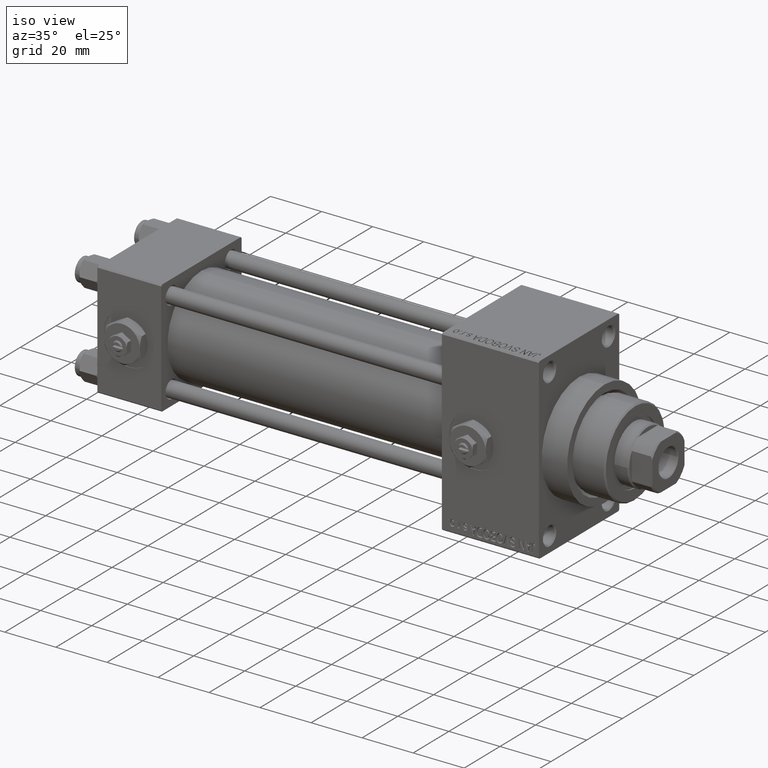
[diagram: clean part render]
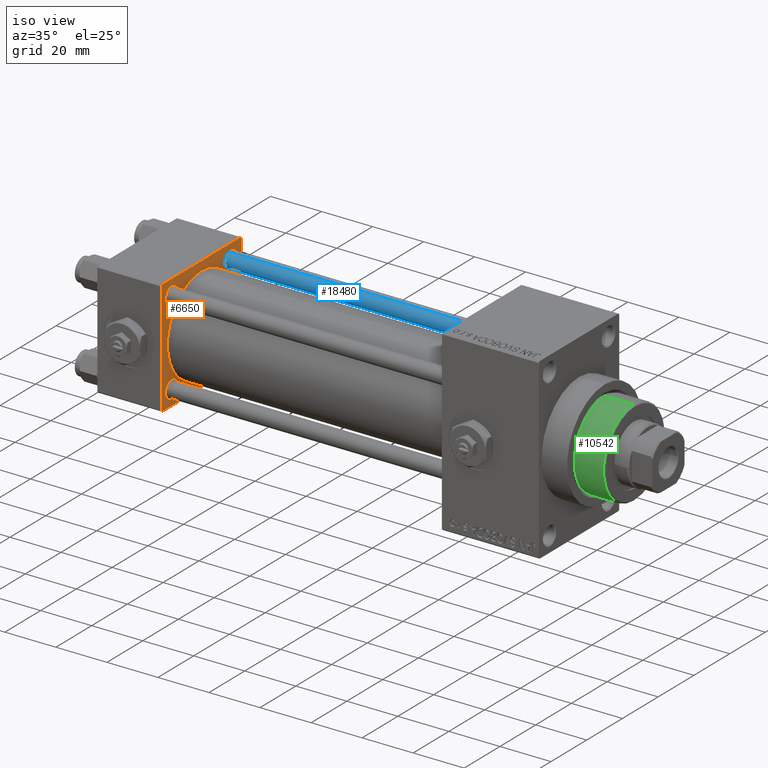
[diagram: same view with three faces highlighted in distinct colors, each labeled with its STEP entity id]
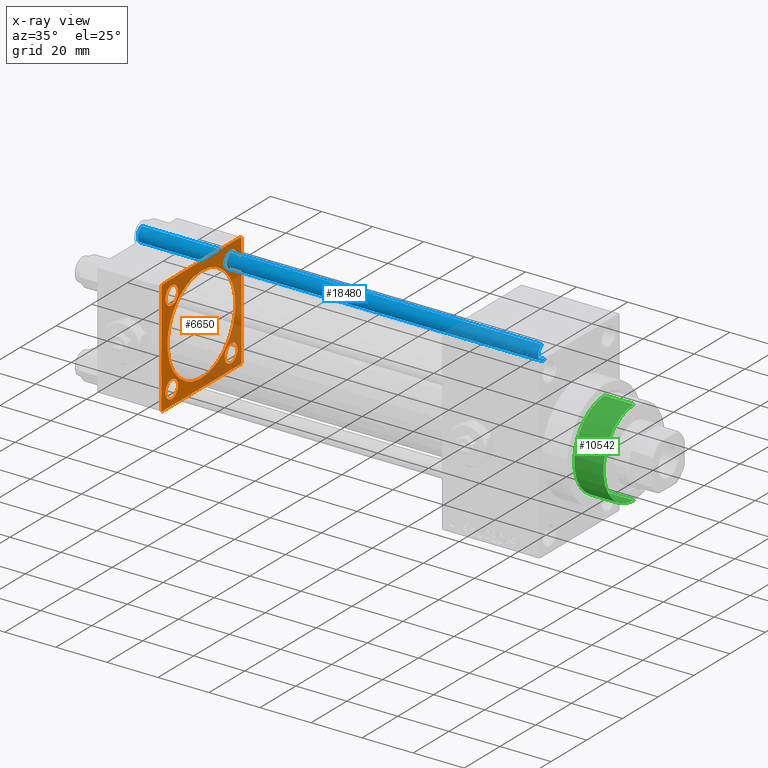
[diagram: x-ray of the same camera — body ghosted, the three highlighted faces saturated]
A machine part, iso view with three faces highlighted in distinct colors.
The next image is the same camera in x-ray (body ghosted, the three faces saturated) — at least one of them is partly hidden behind the body in this view.
Their STEP definitions:

[orange] entity #6650 — the highlighted planar face has unit normal (-1, 0, 0).
#215 = VERTEX_POINT ( 'NONE', #45358 ) ;
#1171 = CARTESIAN_POINT ( 'NONE',  ( 25.00000000000000000, -16.59999999999999076, 16.60000000000000853 ) ) ;
#1376 = VERTEX_POINT ( 'NONE', #35162 ) ;
#1720 = ORIENTED_EDGE ( 'NONE', *, *, #36762, .T. ) ;
#2198 = AXIS2_PLACEMENT_3D ( 'NONE', #47590, #28708, #43879 ) ;
#2247 = CARTESIAN_POINT ( 'NONE',  ( 25.00000000000000000, -22.50000000000000000, 22.00000000000000000 ) ) ;
#2430 = DIRECTION ( 'NONE',  ( 0.000000000000000000, -1.000000000000000000, -2.312964634635742957E-16 ) ) ;
#2605 = ORIENTED_EDGE ( 'NONE', *, *, #31186, .T. ) ;
#3300 = CIRCLE ( 'NONE', #27876, 3.500000000000003109 ) ;
#3740 = DIRECTION ( 'NONE',  ( -0.000000000000000000, 0.7071067811865426878, 0.7071067811865524577 ) ) ;
#4145 = CARTESIAN_POINT ( 'NONE',  ( 25.00000000000000000, -16.59999999999999076, 13.10000000000002807 ) ) ;
#4555 = AXIS2_PLACEMENT_3D ( 'NONE', #13896, #29012, #40443 ) ;
#4718 = CARTESIAN_POINT ( 'NONE',  ( 25.00000000000000000, 22.50000000000000000, -21.99999999999998224 ) ) ;
#5115 = CIRCLE ( 'NONE', #32869, 19.00000000000000000 ) ;
#5293 = CARTESIAN_POINT ( 'NONE',  ( 25.00000000000000000, -21.99999999999998579, -22.50000000000000711 ) ) ;
#6166 = CIRCLE ( 'NONE', #4555, 3.500000000000003109 ) ;
#6569 = VERTEX_POINT ( 'NONE', #16990 ) ;
#6650 = ADVANCED_FACE ( 'NONE', ( #27285, #42452, #8914, #24794, #17117, #9159 ), #35224, .F. ) ;
#7082 = AXIS2_PLACEMENT_3D ( 'NONE', #44808, #28922, #10550 ) ;
#8390 = DIRECTION ( 'NONE',  ( 0.000000000000000000, -1.000000000000000000, -7.709882115452476934E-17 ) ) ;
#8693 = CARTESIAN_POINT ( 'NONE',  ( 25.00000000000000000, -16.59999999999999076, 20.09999999999998721 ) ) ;
#8914 = FACE_BOUND ( 'NONE', #44801, .T. ) ;
#9159 = FACE_OUTER_BOUND ( 'NONE', #35822, .T. ) ;
#9266 = DIRECTION ( 'NONE',  ( 0.000000000000000000, 0.000000000000000000, 1.000000000000000000 ) ) ;
#9358 = VECTOR ( 'NONE', #46329, 1000.000000000000000 ) ;
#9559 = DIRECTION ( 'NONE',  ( -1.000000000000000000, 0.000000000000000000, -0.000000000000000000 ) ) ;
#9834 = ORIENTED_EDGE ( 'NONE', *, *, #30893, .T. ) ;
#10389 = LINE ( 'NONE', #40432, #43107 ) ;
#10550 = DIRECTION ( 'NONE',  ( 0.000000000000000000, 0.000000000000000000, 1.000000000000000000 ) ) ;
#11052 = EDGE_LOOP ( 'NONE', ( #40641, #11590 ) ) ;
#11590 = ORIENTED_EDGE ( 'NONE', *, *, #45780, .T. ) ;
#11843 = VERTEX_POINT ( 'NONE', #30373 ) ;
#11882 = EDGE_LOOP ( 'NONE', ( #46000, #15228 ) ) ;
#12066 = LINE ( 'NONE', #19511, #9358 ) ;
#12196 = EDGE_CURVE ( 'NONE', #21441, #1376, #6166, .T. ) ;
#12265 = CARTESIAN_POINT ( 'NONE',  ( 25.00000000000000000, -16.59999999999999076, -13.10000000000003162 ) ) ;
#12330 = VERTEX_POINT ( 'NONE', #14373 ) ;
#12369 = EDGE_CURVE ( 'NONE', #18249, #43035, #35185, .T. ) ;
#12526 = EDGE_CURVE ( 'NONE', #18409, #34833, #45020, .T. ) ;
#12666 = VERTEX_POINT ( 'NONE', #31148 ) ;
#12808 = DIRECTION ( 'NONE',  ( 0.000000000000000000, 0.000000000000000000, 1.000000000000000000 ) ) ;
#12879 = VERTEX_POINT ( 'NONE', #44791 ) ;
#13153 = DIRECTION ( 'NONE',  ( 0.000000000000000000, 0.000000000000000000, 1.000000000000000000 ) ) ;
#13448 = EDGE_CURVE ( 'NONE', #215, #23646, #12066, .T. ) ;
#13896 = CARTESIAN_POINT ( 'NONE',  ( 25.00000000000000000, 16.59999999999999787, 16.60000000000000497 ) ) ;
#14348 = CARTESIAN_POINT ( 'NONE',  ( 25.00000000000000000, -21.99999999999997868, 22.50000000000000000 ) ) ;
#14373 = CARTESIAN_POINT ( 'NONE',  ( 25.00000000000000000, -22.50000000000000000, -21.99999999999997158 ) ) ;
#14698 = DIRECTION ( 'NONE',  ( 1.000000000000000000, -0.000000000000000000, 0.000000000000000000 ) ) ;
#14909 = VECTOR ( 'NONE', #8390, 1000.000000000000000 ) ;
#15228 = ORIENTED_EDGE ( 'NONE', *, *, #32714, .F. ) ;
#15841 = DIRECTION ( 'NONE',  ( -1.000000000000000000, 0.000000000000000000, -0.000000000000000000 ) ) ;
#15861 = ORIENTED_EDGE ( 'NONE', *, *, #12196, .T. ) ;
#16372 = DIRECTION ( 'NONE',  ( -1.000000000000000000, 0.000000000000000000, -0.000000000000000000 ) ) ;
#16794 = AXIS2_PLACEMENT_3D ( 'NONE', #39204, #16372, #24062 ) ;
#16878 = CARTESIAN_POINT ( 'NONE',  ( 24.99999999999999289, -2.602085213965210642E-15, 0.000000000000000000 ) ) ;
#16990 = CARTESIAN_POINT ( 'NONE',  ( 25.00000000000000000, -16.59999999999999076, -20.09999999999998366 ) ) ;
#17087 = VERTEX_POINT ( 'NONE', #30731 ) ;
#17117 = FACE_BOUND ( 'NONE', #11882, .T. ) ;
#17135 = CARTESIAN_POINT ( 'NONE',  ( 25.00000000000000000, 21.99999999999999289, -22.49999999999999645 ) ) ;
#17661 = EDGE_CURVE ( 'NONE', #35698, #12330, #38509, .T. ) ;
#18249 = VERTEX_POINT ( 'NONE', #40511 ) ;
#18409 = VERTEX_POINT ( 'NONE', #8693 ) ;
#19153 = CARTESIAN_POINT ( 'NONE',  ( 25.00000000000000000, -22.50000000000000000, 22.50000000000000000 ) ) ;
#19161 = LINE ( 'NONE', #4718, #37457 ) ;
#19222 = EDGE_CURVE ( 'NONE', #215, #18249, #36546, .T. ) ;
#19511 = CARTESIAN_POINT ( 'NONE',  ( 25.00000000000000000, 22.50000000000000000, 22.50000000000000355 ) ) ;
#20310 = ORIENTED_EDGE ( 'NONE', *, *, #29117, .F. ) ;
#20448 = EDGE_LOOP ( 'NONE', ( #15861, #1720 ) ) ;
#20632 = DIRECTION ( 'NONE',  ( -1.000000000000000000, 0.000000000000000000, -0.000000000000000000 ) ) ;
#20990 = AXIS2_PLACEMENT_3D ( 'NONE', #28127, #43287, #9266 ) ;
#21417 = ORIENTED_EDGE ( 'NONE', *, *, #13448, .F. ) ;
#21441 = VERTEX_POINT ( 'NONE', #22574 ) ;
#21489 = ORIENTED_EDGE ( 'NONE', *, *, #25177, .T. ) ;
#22498 = CIRCLE ( 'NONE', #43922, 19.00000000000000000 ) ;
#22574 = CARTESIAN_POINT ( 'NONE',  ( 25.00000000000000000, 16.59999999999999787, 13.10000000000000142 ) ) ;
#22800 = CARTESIAN_POINT ( 'NONE',  ( 25.00000000000000000, 22.50000000000000000, 22.50000000000000355 ) ) ;
#23646 = VERTEX_POINT ( 'NONE', #30510 ) ;
#24062 = DIRECTION ( 'NONE',  ( -0.000000000000000000, 0.000000000000000000, 1.000000000000000000 ) ) ;
#24222 = CARTESIAN_POINT ( 'NONE',  ( 25.00000000000000000, 16.59999999999999787, 16.60000000000000497 ) ) ;
#24667 = AXIS2_PLACEMENT_3D ( 'NONE', #1171, #15841, #27245 ) ;
#24794 = FACE_BOUND ( 'NONE', #20448, .T. ) ;
#25177 = EDGE_CURVE ( 'NONE', #12330, #12879, #27891, .T. ) ;
#25301 = CIRCLE ( 'NONE', #7082, 3.500000000000003109 ) ;
#25842 = DIRECTION ( 'NONE',  ( 0.000000000000000000, 0.000000000000000000, 1.000000000000000000 ) ) ;
#26425 = ORIENTED_EDGE ( 'NONE', *, *, #12369, .T. ) ;
#26523 = VERTEX_POINT ( 'NONE', #12265 ) ;
#26577 = CARTESIAN_POINT ( 'NONE',  ( 24.99999999999999289, -2.602085213965210642E-15, 0.000000000000000000 ) ) ;
#26927 = EDGE_CURVE ( 'NONE', #35332, #23646, #19161, .T. ) ;
#27245 = DIRECTION ( 'NONE',  ( 0.000000000000000000, 0.000000000000000000, 1.000000000000000000 ) ) ;
#27285 = FACE_BOUND ( 'NONE', #33513, .T. ) ;
#27701 = AXIS2_PLACEMENT_3D ( 'NONE', #24222, #9559, #12808 ) ;
#27876 = AXIS2_PLACEMENT_3D ( 'NONE', #45383, #49097, #45128 ) ;
#27891 = LINE ( 'NONE', #5293, #29506 ) ;
#28086 = CIRCLE ( 'NONE', #20990, 3.499999999999975131 ) ;
#28127 = CARTESIAN_POINT ( 'NONE',  ( 25.00000000000000000, -16.59999999999999076, -16.60000000000000853 ) ) ;
#28708 = DIRECTION ( 'NONE',  ( -1.000000000000000000, 0.000000000000000000, -0.000000000000000000 ) ) ;
#28922 = DIRECTION ( 'NONE',  ( -1.000000000000000000, 0.000000000000000000, -0.000000000000000000 ) ) ;
#29012 = DIRECTION ( 'NONE',  ( -1.000000000000000000, 0.000000000000000000, -0.000000000000000000 ) ) ;
#29117 = EDGE_CURVE ( 'NONE', #35332, #12879, #10389, .T. ) ;
#29506 = VECTOR ( 'NONE', #39324, 1000.000000000000000 ) ;
#30373 = CARTESIAN_POINT ( 'NONE',  ( 25.00000000000000000, 16.59999999999999787, -13.10000000000000142 ) ) ;
#30510 = CARTESIAN_POINT ( 'NONE',  ( 25.00000000000000000, 22.50000000000000000, -21.99999999999996803 ) ) ;
#30731 = CARTESIAN_POINT ( 'NONE',  ( 24.99999999999999289, -2.602085213965210642E-15, 19.00000000000000000 ) ) ;
#30893 = EDGE_CURVE ( 'NONE', #6569, #26523, #28086, .T. ) ;
#31148 = CARTESIAN_POINT ( 'NONE',  ( 25.00000000000000000, 16.59999999999999787, -20.10000000000000853 ) ) ;
#31186 = EDGE_CURVE ( 'NONE', #26523, #6569, #45552, .T. ) ;
#31990 = ORIENTED_EDGE ( 'NONE', *, *, #12526, .T. ) ;
#32570 = CARTESIAN_POINT ( 'NONE',  ( 25.00000000000000000, 21.99999999999999289, 22.50000000000000355 ) ) ;
#32706 = ORIENTED_EDGE ( 'NONE', *, *, #17661, .T. ) ;
#32714 = EDGE_CURVE ( 'NONE', #43486, #17087, #22498, .T. ) ;
#32869 = AXIS2_PLACEMENT_3D ( 'NONE', #26577, #14698, #25842 ) ;
#33513 = EDGE_LOOP ( 'NONE', ( #9834, #2605 ) ) ;
#34191 = VECTOR ( 'NONE', #47445, 999.9999999999998863 ) ;
#34833 = VERTEX_POINT ( 'NONE', #4145 ) ;
#35162 = CARTESIAN_POINT ( 'NONE',  ( 25.00000000000000000, 16.59999999999999787, 20.10000000000000853 ) ) ;
#35172 = EDGE_CURVE ( 'NONE', #17087, #43486, #5115, .T. ) ;
#35185 = LINE ( 'NONE', #22800, #14909 ) ;
#35224 = PLANE ( 'NONE',  #16794 ) ;
#35332 = VERTEX_POINT ( 'NONE', #17135 ) ;
#35698 = VERTEX_POINT ( 'NONE', #38615 ) ;
#35822 = EDGE_LOOP ( 'NONE', ( #20310, #42851, #21417, #41953, #26425, #42860, #32706, #21489 ) ) ;
#36272 = LINE ( 'NONE', #2247, #34191 ) ;
#36546 = LINE ( 'NONE', #32570, #43555 ) ;
#36762 = EDGE_CURVE ( 'NONE', #1376, #21441, #45942, .T. ) ;
#36936 = EDGE_CURVE ( 'NONE', #12666, #11843, #25301, .T. ) ;
#37457 = VECTOR ( 'NONE', #3740, 1000.000000000000000 ) ;
#38424 = AXIS2_PLACEMENT_3D ( 'NONE', #44391, #20632, #39260 ) ;
#38509 = LINE ( 'NONE', #19153, #42815 ) ;
#38615 = CARTESIAN_POINT ( 'NONE',  ( 25.00000000000000000, -22.50000000000000000, 22.00000000000000000 ) ) ;
#39204 = CARTESIAN_POINT ( 'NONE',  ( 25.00000000000000000, 0.000000000000000000, 0.000000000000000000 ) ) ;
#39260 = DIRECTION ( 'NONE',  ( 0.000000000000000000, 0.000000000000000000, 1.000000000000000000 ) ) ;
#39324 = DIRECTION ( 'NONE',  ( 0.000000000000000000, 0.7071067811865426878, -0.7071067811865524577 ) ) ;
#39988 = CARTESIAN_POINT ( 'NONE',  ( 24.99999999999999289, -2.752562955852396712E-16, -19.00000000000000000 ) ) ;
#40432 = CARTESIAN_POINT ( 'NONE',  ( 25.00000000000000000, 22.50000000000000000, -22.49999999999999645 ) ) ;
#40443 = DIRECTION ( 'NONE',  ( 0.000000000000000000, 0.000000000000000000, 1.000000000000000000 ) ) ;
#40511 = CARTESIAN_POINT ( 'NONE',  ( 25.00000000000000000, 21.99999999999999289, 22.50000000000000355 ) ) ;
#40543 = CIRCLE ( 'NONE', #24667, 3.499999999999978684 ) ;
#40641 = ORIENTED_EDGE ( 'NONE', *, *, #36936, .T. ) ;
#40739 = EDGE_CURVE ( 'NONE', #34833, #18409, #40543, .T. ) ;
#41953 = ORIENTED_EDGE ( 'NONE', *, *, #19222, .T. ) ;
#42246 = DIRECTION ( 'NONE',  ( 0.000000000000000000, 0.000000000000000000, -1.000000000000000000 ) ) ;
#42452 = FACE_BOUND ( 'NONE', #11052, .T. ) ;
#42815 = VECTOR ( 'NONE', #42246, 1000.000000000000000 ) ;
#42851 = ORIENTED_EDGE ( 'NONE', *, *, #26927, .T. ) ;
#42860 = ORIENTED_EDGE ( 'NONE', *, *, #45183, .T. ) ;
#43035 = VERTEX_POINT ( 'NONE', #14348 ) ;
#43107 = VECTOR ( 'NONE', #2430, 1000.000000000000000 ) ;
#43287 = DIRECTION ( 'NONE',  ( -1.000000000000000000, 0.000000000000000000, -0.000000000000000000 ) ) ;
#43486 = VERTEX_POINT ( 'NONE', #39988 ) ;
#43555 = VECTOR ( 'NONE', #44494, 1000.000000000000114 ) ;
#43879 = DIRECTION ( 'NONE',  ( 0.000000000000000000, 0.000000000000000000, 1.000000000000000000 ) ) ;
#43922 = AXIS2_PLACEMENT_3D ( 'NONE', #16878, #47153, #13153 ) ;
#44391 = CARTESIAN_POINT ( 'NONE',  ( 25.00000000000000000, -16.59999999999999076, -16.60000000000000853 ) ) ;
#44494 = DIRECTION ( 'NONE',  ( 0.000000000000000000, -0.7071067811865474617, 0.7071067811865474617 ) ) ;
#44791 = CARTESIAN_POINT ( 'NONE',  ( 25.00000000000000000, -21.99999999999997158, -22.50000000000000711 ) ) ;
#44801 = EDGE_LOOP ( 'NONE', ( #48006, #31990 ) ) ;
#44808 = CARTESIAN_POINT ( 'NONE',  ( 25.00000000000000000, 16.59999999999999787, -16.60000000000000497 ) ) ;
#45020 = CIRCLE ( 'NONE', #2198, 3.499999999999978684 ) ;
#45128 = DIRECTION ( 'NONE',  ( 0.000000000000000000, 0.000000000000000000, 1.000000000000000000 ) ) ;
#45183 = EDGE_CURVE ( 'NONE', #43035, #35698, #36272, .T. ) ;
#45358 = CARTESIAN_POINT ( 'NONE',  ( 25.00000000000000000, 22.50000000000000000, 21.99999999999999645 ) ) ;
#45383 = CARTESIAN_POINT ( 'NONE',  ( 25.00000000000000000, 16.59999999999999787, -16.60000000000000497 ) ) ;
#45552 = CIRCLE ( 'NONE', #38424, 3.499999999999975131 ) ;
#45780 = EDGE_CURVE ( 'NONE', #11843, #12666, #3300, .T. ) ;
#45942 = CIRCLE ( 'NONE', #27701, 3.500000000000003109 ) ;
#46000 = ORIENTED_EDGE ( 'NONE', *, *, #35172, .F. ) ;
#46329 = DIRECTION ( 'NONE',  ( 0.000000000000000000, 0.000000000000000000, -1.000000000000000000 ) ) ;
#47153 = DIRECTION ( 'NONE',  ( 1.000000000000000000, -0.000000000000000000, 0.000000000000000000 ) ) ;
#47445 = DIRECTION ( 'NONE',  ( -0.000000000000000000, -0.7071067811865525687, -0.7071067811865425767 ) ) ;
#47590 = CARTESIAN_POINT ( 'NONE',  ( 25.00000000000000000, -16.59999999999999076, 16.60000000000000853 ) ) ;
#48006 = ORIENTED_EDGE ( 'NONE', *, *, #40739, .T. ) ;
#49097 = DIRECTION ( 'NONE',  ( -1.000000000000000000, 0.000000000000000000, -0.000000000000000000 ) ) ;

[blue] entity #18480 — the highlighted cylindrical surface (edge-blend (fillet) strip) has radius 3 mm, axis along (-1, -0, 0).
#501 = CARTESIAN_POINT ( 'NONE',  ( 3.000000000000000444, 3.673940397442060361E-16, 157.5000000000000000 ) ) ;
#1397 = CIRCLE ( 'NONE', #15676, 3.000000000000000444 ) ;
#1476 = DIRECTION ( 'NONE',  ( -1.000000000000000000, 0.000000000000000000, 0.000000000000000000 ) ) ;
#1726 = FACE_OUTER_BOUND ( 'NONE', #34801, .T. ) ;
#1931 = ORIENTED_EDGE ( 'NONE', *, *, #36455, .T. ) ;
#2170 = LINE ( 'NONE', #17333, #23752 ) ;
#3570 = DIRECTION ( 'NONE',  ( 1.000000000000000000, 0.000000000000000000, 0.000000000000000000 ) ) ;
#3691 = ORIENTED_EDGE ( 'NONE', *, *, #12056, .T. ) ;
#4426 = VERTEX_POINT ( 'NONE', #6584 ) ;
#5822 = VERTEX_POINT ( 'NONE', #39692 ) ;
#6584 = CARTESIAN_POINT ( 'NONE',  ( 3.000000000000000444, 3.673940397442060361E-16, 0.5000000000000281997 ) ) ;
#6970 = ORIENTED_EDGE ( 'NONE', *, *, #45259, .F. ) ;
#12056 = EDGE_CURVE ( 'NONE', #5822, #4426, #1397, .T. ) ;
#12959 = LINE ( 'NONE', #20641, #46893 ) ;
#13514 = AXIS2_PLACEMENT_3D ( 'NONE', #16644, #20870, #1476 ) ;
#15676 = AXIS2_PLACEMENT_3D ( 'NONE', #31267, #46434, #30770 ) ;
#16644 = CARTESIAN_POINT ( 'NONE',  ( 0.000000000000000000, 0.000000000000000000, 158.0000000000000000 ) ) ;
#16930 = DIRECTION ( 'NONE',  ( -0.000000000000000000, -0.000000000000000000, -1.000000000000000000 ) ) ;
#17119 = CARTESIAN_POINT ( 'NONE',  ( -3.000000000000000444, 0.000000000000000000, 157.5000000000000000 ) ) ;
#17333 = CARTESIAN_POINT ( 'NONE',  ( -3.000000000000000444, 0.000000000000000000, 158.0000000000000000 ) ) ;
#18480 = ADVANCED_FACE ( 'NONE', ( #1726 ), #24568, .T. ) ;
#20641 = CARTESIAN_POINT ( 'NONE',  ( 3.000000000000000444, 3.673940397442060361E-16, 158.0000000000000000 ) ) ;
#20870 = DIRECTION ( 'NONE',  ( -0.000000000000000000, -0.000000000000000000, -1.000000000000000000 ) ) ;
#22466 = DIRECTION ( 'NONE',  ( 0.000000000000000000, 0.000000000000000000, -1.000000000000000000 ) ) ;
#22943 = CARTESIAN_POINT ( 'NONE',  ( 0.000000000000000000, 0.000000000000000000, 157.5000000000000000 ) ) ;
#23752 = VECTOR ( 'NONE', #41126, 1000.000000000000000 ) ;
#23848 = AXIS2_PLACEMENT_3D ( 'NONE', #22943, #22466, #3570 ) ;
#24568 = CYLINDRICAL_SURFACE ( 'NONE', #13514, 3.000000000000000444 ) ;
#30770 = DIRECTION ( 'NONE',  ( 1.000000000000000000, 0.000000000000000000, 0.000000000000000000 ) ) ;
#31267 = CARTESIAN_POINT ( 'NONE',  ( 0.000000000000000000, 0.000000000000000000, 0.5000000000000281997 ) ) ;
#32558 = CIRCLE ( 'NONE', #23848, 3.000000000000000444 ) ;
#34801 = EDGE_LOOP ( 'NONE', ( #6970, #43515, #1931, #3691 ) ) ;
#36455 = EDGE_CURVE ( 'NONE', #45607, #5822, #2170, .T. ) ;
#39411 = VERTEX_POINT ( 'NONE', #501 ) ;
#39692 = CARTESIAN_POINT ( 'NONE',  ( -3.000000000000000444, 0.000000000000000000, 0.5000000000000281997 ) ) ;
#40132 = EDGE_CURVE ( 'NONE', #39411, #45607, #32558, .T. ) ;
#41126 = DIRECTION ( 'NONE',  ( -0.000000000000000000, -0.000000000000000000, -1.000000000000000000 ) ) ;
#43515 = ORIENTED_EDGE ( 'NONE', *, *, #40132, .T. ) ;
#45259 = EDGE_CURVE ( 'NONE', #39411, #4426, #12959, .T. ) ;
#45607 = VERTEX_POINT ( 'NONE', #17119 ) ;
#46434 = DIRECTION ( 'NONE',  ( -0.000000000000000000, -0.000000000000000000, 1.000000000000000000 ) ) ;
#46893 = VECTOR ( 'NONE', #16930, 1000.000000000000000 ) ;

[green] entity #10542 — the highlighted cylindrical surface (partial cylindrical patch) has radius 17 mm, axis along (-1, 0, 0).
#14 = EDGE_CURVE ( 'NONE', #8975, #13222, #20687, .T. ) ;
#1778 = DIRECTION ( 'NONE',  ( 1.000000000000000000, 0.000000000000000000, 0.000000000000000000 ) ) ;
#2060 = ORIENTED_EDGE ( 'NONE', *, *, #14, .T. ) ;
#5389 = DIRECTION ( 'NONE',  ( 1.000000000000000000, 0.000000000000000000, 0.000000000000000000 ) ) ;
#6519 = ORIENTED_EDGE ( 'NONE', *, *, #16618, .F. ) ;
#6613 = CARTESIAN_POINT ( 'NONE',  ( 0.000000000000000000, 0.000000000000000000, 55.26000000000000512 ) ) ;
#6743 = LINE ( 'NONE', #14194, #47521 ) ;
#8975 = VERTEX_POINT ( 'NONE', #37989 ) ;
#9130 = CARTESIAN_POINT ( 'NONE',  ( -17.00000000000000000, 0.000000000000000000, 43.25999999999999801 ) ) ;
#10348 = VECTOR ( 'NONE', #23595, 1000.000000000000000 ) ;
#10542 = ADVANCED_FACE ( 'NONE', ( #33162 ), #47593, .T. ) ;
#11120 = VERTEX_POINT ( 'NONE', #42533 ) ;
#13222 = VERTEX_POINT ( 'NONE', #9130 ) ;
#13573 = AXIS2_PLACEMENT_3D ( 'NONE', #27735, #42660, #5389 ) ;
#14194 = CARTESIAN_POINT ( 'NONE',  ( -17.00000000000000000, 0.000000000000000000, 55.26000000000000512 ) ) ;
#16618 = EDGE_CURVE ( 'NONE', #21292, #13222, #6743, .T. ) ;
#16948 = CARTESIAN_POINT ( 'NONE',  ( 0.000000000000000000, 0.000000000000000000, 54.76000000000001222 ) ) ;
#17081 = DIRECTION ( 'NONE',  ( -0.000000000000000000, -0.000000000000000000, -1.000000000000000000 ) ) ;
#19394 = LINE ( 'NONE', #23366, #10348 ) ;
#20687 = CIRCLE ( 'NONE', #13573, 17.00000000000000000 ) ;
#21007 = EDGE_CURVE ( 'NONE', #11120, #8975, #19394, .T. ) ;
#21292 = VERTEX_POINT ( 'NONE', #45414 ) ;
#21765 = AXIS2_PLACEMENT_3D ( 'NONE', #16948, #36050, #1778 ) ;
#22547 = CIRCLE ( 'NONE', #21765, 17.00000000000000000 ) ;
#23366 = CARTESIAN_POINT ( 'NONE',  ( 17.00000000000000000, 2.081899558550500280E-15, 55.26000000000000512 ) ) ;
#23595 = DIRECTION ( 'NONE',  ( -0.000000000000000000, -0.000000000000000000, -1.000000000000000000 ) ) ;
#25008 = DIRECTION ( 'NONE',  ( -1.000000000000000000, 0.000000000000000000, 0.000000000000000000 ) ) ;
#27735 = CARTESIAN_POINT ( 'NONE',  ( 0.000000000000000000, 0.000000000000000000, 43.25999999999999801 ) ) ;
#33162 = FACE_OUTER_BOUND ( 'NONE', #33806, .T. ) ;
#33178 = ORIENTED_EDGE ( 'NONE', *, *, #21007, .T. ) ;
#33806 = EDGE_LOOP ( 'NONE', ( #38503, #33178, #2060, #6519 ) ) ;
#34445 = EDGE_CURVE ( 'NONE', #21292, #11120, #22547, .T. ) ;
#36050 = DIRECTION ( 'NONE',  ( 0.000000000000000000, 0.000000000000000000, -1.000000000000000000 ) ) ;
#37989 = CARTESIAN_POINT ( 'NONE',  ( 17.00000000000000000, 2.081899558550500280E-15, 43.25999999999999801 ) ) ;
#38503 = ORIENTED_EDGE ( 'NONE', *, *, #34445, .T. ) ;
#42533 = CARTESIAN_POINT ( 'NONE',  ( 17.00000000000000000, 2.081899558550500280E-15, 54.76000000000001222 ) ) ;
#42660 = DIRECTION ( 'NONE',  ( 0.000000000000000000, 0.000000000000000000, 1.000000000000000000 ) ) ;
#44484 = DIRECTION ( 'NONE',  ( -0.000000000000000000, -0.000000000000000000, -1.000000000000000000 ) ) ;
#45414 = CARTESIAN_POINT ( 'NONE',  ( -17.00000000000000000, 0.000000000000000000, 54.76000000000001222 ) ) ;
#45743 = AXIS2_PLACEMENT_3D ( 'NONE', #6613, #17081, #25008 ) ;
#47521 = VECTOR ( 'NONE', #44484, 1000.000000000000000 ) ;
#47593 = CYLINDRICAL_SURFACE ( 'NONE', #45743, 17.00000000000000000 ) ;